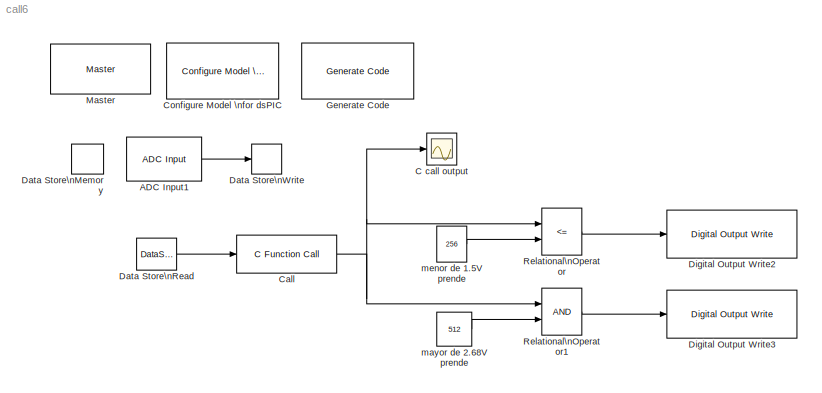
MODEL call6
KIND model
BLOCK [Reference] ADC Input1  REF=dsPICdrivers/Peripheral I//O/ADC Input
  ADCS = 9
  ADC_MODE = Continuous sampling & get last channel value
  ADC_TYPE = 10 bits
  ANCHANNELS = [0]
  DMAChannel = 0
  InterruptPriority = 1
  MaxName = ANmax = 1024
  NbrSampleStep = 1
  OutFormatBitspopup = 0000 00dd dddd dddd : Integer
  Ports = [0, 1]
  Priority = 5
  Rin = 1e2
  SAMC = 1
  SampleTime = .001
  SourceBlock = dsPICdrivers/Peripheral I//O/ADC Input
  SourceType = dsPIC : ADC10
  Status = OK  |  Tsmp=1.667e-007 |  T/Channel=2.167e-006 |  Tall=2.167e-006
  Tag = dsPIC_ADC
  Temperature = 25
  VoltRefpopup = AVdd  -  AVss
BLOCK [Scope] C call output
  DataFormat = StructureWithTime
  Floating = off
  NumInputPorts = 1
  Ports = [1]
  SampleTime = 0
BLOCK [Reference] Call  REF=dsPICdrivers/OTHERS/C Function Call
  FctCall = %y1 = call6(%u1);
  FctDeclaration = extern uint16_T call6(uint16_T u1);
  INPUT1 = uint16
  INPUT2 = --
  INPUT3 = --
  INPUT_SIZE = 1
  InputType = [ 4 ]
  OUTPUT1 = uint16
  OUTPUT_SIZE = 1
  OrderingInOutPopup = None
  OutputType = [ 4 ]
  Ports = [1, 1]
  SampleTime = .001
  SourceBlock = dsPICdrivers/OTHERS/C Function Call
  SourceType = C Function Call
  Tag = dsPIC_dsPIC_CFunctionCall
  fctName = 'call6'
BLOCK [Reference] Configure Model \nfor dsPIC  REF=dsPICdrivers/Simulink Configuration/Configure Model \nfor dsPIC
  Ports = []
  SourceBlock = dsPICdrivers/Simulink Configuration/Configure Model \nfor dsPIC
BLOCK [DataStoreMemory] Data Store\nMemory
  DataStoreName = Input
  DataType = uint16
  InitialValue = 20
  RTWStateStorageClass = ExportedGlobal
  ReadBeforeWriteMsg = warning
  ShowAdditionalParam = off
  VectorParams1D = on
  WriteAfterReadMsg = warning
  WriteAfterWriteMsg = warning
BLOCK [DataStoreRead] Data Store\nRead
  DataStoreName = Input
  SampleTime = .001
BLOCK [DataStoreWrite] Data Store\nWrite
  DataStoreName = Input
  SampleTime = -1
BLOCK [Reference] Digital Output Write2  REF=dsPICdrivers/Digital I//O/Digital Output Write
  OrderingInOutPopup = None
  PORT = D
  Pin = [1]
  Ports = [1]
  Priority = 5
  Simultaneous = off
  SourceBlock = dsPICdrivers/Digital I//O/Digital Output Write
  Tag = dsPIC_Digital_Output
BLOCK [Reference] Digital Output Write3  REF=dsPICdrivers/Digital I//O/Digital Output Write
  OrderingInOutPopup = None
  PORT = D
  Pin = [0]
  Ports = [1]
  Priority = 5
  Simultaneous = off
  SourceBlock = dsPICdrivers/Digital I//O/Digital Output Write
  Tag = dsPIC_Digital_Output
BLOCK [Reference] Generate Code  REF=dsPICdrivers/Simulink Configuration/Generate Code
  Ports = []
  SourceBlock = dsPICdrivers/Simulink Configuration/Generate Code
BLOCK [Reference] Master  REF=dsPICdrivers/Master
  ADPCFG = 0
  ClockSwitchMonitor = Both disabled
  FOSC = FRC_PLL16
  FPBOR = PBOR_OFF
  IOautoConf = on
  MCLR = MCLR_DIS
  MasterBusyPort = None
  MasterOverloadPort = None
  NewFcy = 1e6
  OverrideFcy = off
  PLLActive_33f = off
  PWRT = PWRT_OFF
  Ports = []
  PowerSave = off
  Priority = 1
  Quartz_33f = 5e6
  SourceBlock = dsPICdrivers/Master
  SourceType = Master
  TRIS = [ 65535  65535  65535  65532  65535  65535  65535 ]
  Tag = dsPIC_MASTER
  TempProtection_33f = TEMP_ON
  TimeStepType = Timer1
  fcy = 30e6
  fcyDesired_33f = 0
  picType = 30f4012
  tmr1 = [1  29999  0]
  tmr1Info = Time Step : 0.001  ;   Error : 0%  PR1=29999
  tmr2345 = [0  0  0  0]
  tmr2345cfg = [-1 -1 -1 -1]
  typePort = [ 0   0   0   0   0   0   0   0   0   0   0   0   0   0   0   0   8   0   0   0   0   0   0   0   0   0   0   0   0   0   0   0   0   0   0   0   0   0   0   0   0   0   0   0   0   0   0   0  10  10   0   0   0   0   0   0   0   0   0   0   0   0   0   0   0   0   0   0   0   0   0   0   0   0   0   0   0   0   0   0   0   0   0   0   0   0   0   0   0   0   0   0   0   0   0   0   0   0   0   0 ...<+49ch>
BLOCK [RelationalOperator] Relational\nOperator
  InputSameDT = off
  LogicOutDataTypeMode = Boolean
  Operator = <=
BLOCK [RelationalOperator] Relational\nOperator1
  InputSameDT = off
  LogicOutDataTypeMode = Boolean
BLOCK [Constant] mayor de 2.68V prende
  OutDataTypeMode = uint16
  Value = 512
BLOCK [Constant] menor de 1.5V prende
  OutDataTypeMode = uint16
  Value = 256
LINE ADC Input1:1 -> Data Store\nWrite:1
NET Call:1 -> C call output:1, Relational\nOperator1:1, Relational\nOperator:1
LINE Data Store\nRead:1 -> Call:1
LINE Relational\nOperator1:1 -> Digital Output Write3:1
LINE Relational\nOperator:1 -> Digital Output Write2:1
LINE mayor de 2.68V prende:1 -> Relational\nOperator1:2
LINE menor de 1.5V prende:1 -> Relational\nOperator:2
note: NET lines group one-source signal fan-out (src -> all destinations, sorted); 1:1 wires keep LINE
